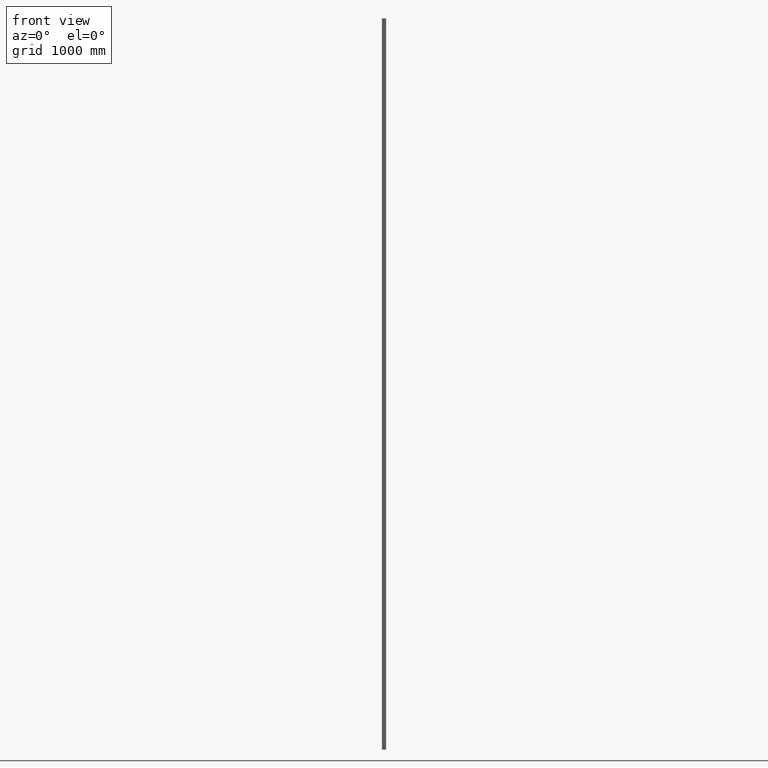
[diagram: clean part render]
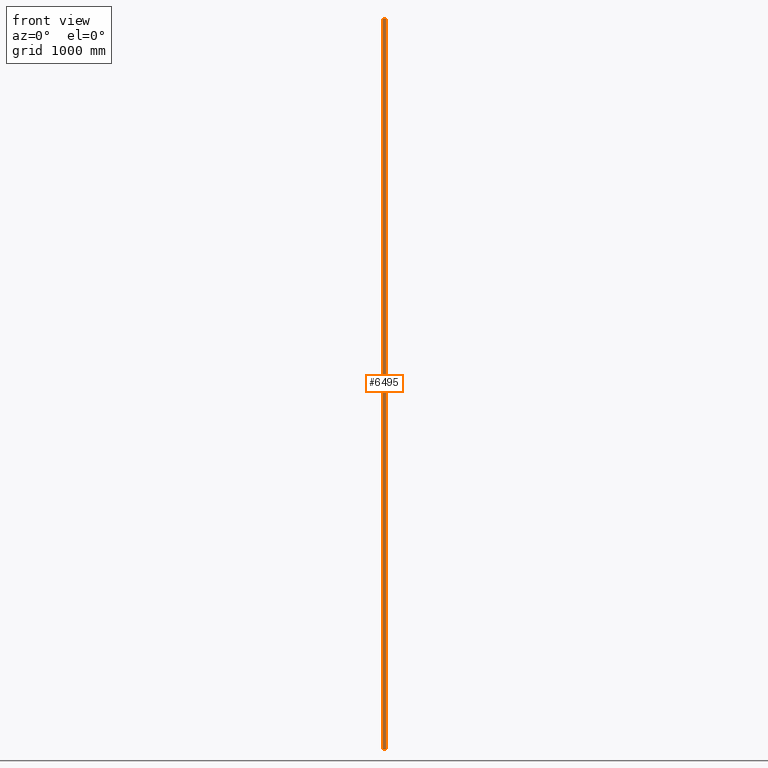
[diagram: same view with one face highlighted and labeled with its STEP entity id]
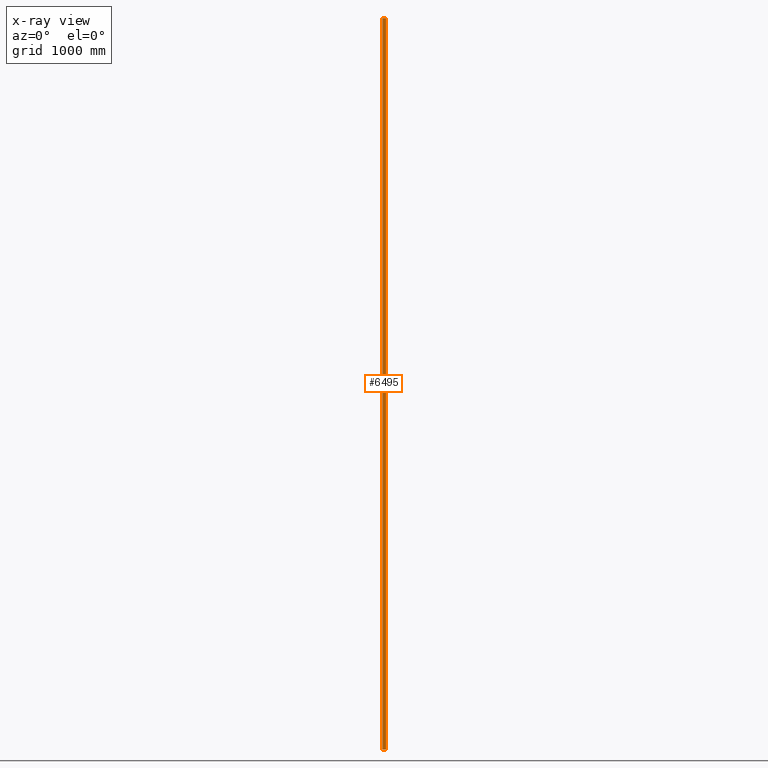
[diagram: x-ray of the same camera — body ghosted, the highlighted face saturated]
A machine part, front view. The second image highlights one B-rep face of the part: STEP entity #6495.
The next image is the same camera in x-ray: the body ghosted, the highlighted face saturated — about 0% of this face is hidden behind the body in this view.
In plain terms, the highlighted planar face has unit normal (0, 1, 0).
Its self-contained STEP definition (entity closure, byte-faithful):
#195 = CARTESIAN_POINT ( 'NONE',  ( 0.0000000000000000000, 0.0000000000000000000, 3000.000000000000000 ) ) ;
#217 = AXIS2_PLACEMENT_3D ( 'NONE', #195, #11460, #9357 ) ;
#582 = LINE ( 'NONE', #8680, #3926 ) ;
#953 = VECTOR ( 'NONE', #11928, 1000.000000000000000 ) ;
#2139 = EDGE_LOOP ( 'NONE', ( #11809, #5162, #12632, #12484 ) ) ;
#2314 = EDGE_CURVE ( 'NONE', #6839, #12365, #5081, .T. ) ;
#3674 = CARTESIAN_POINT ( 'NONE',  ( -14.37500000000002700, 0.0000000000000000000, -3000.000000000000000 ) ) ;
#3803 = CARTESIAN_POINT ( 'NONE',  ( 0.0000000000000000000, 0.0000000000000000000, 3000.000000000000000 ) ) ;
#3926 = VECTOR ( 'NONE', #9721, 1000.000000000000000 ) ;
#4560 = CARTESIAN_POINT ( 'NONE',  ( -0.0000000000000000000, 0.0000000000000000000, -3000.000000000000000 ) ) ;
#4949 = EDGE_CURVE ( 'NONE', #6839, #8238, #582, .T. ) ;
#4997 = VECTOR ( 'NONE', #10692, 1000.000000000000000 ) ;
#5081 = LINE ( 'NONE', #3803, #953 ) ;
#5162 = ORIENTED_EDGE ( 'NONE', *, *, #8343, .F. ) ;
#5505 = LINE ( 'NONE', #4560, #4997 ) ;
#5816 = LINE ( 'NONE', #10826, #6269 ) ;
#6028 = CARTESIAN_POINT ( 'NONE',  ( 14.37499999999996600, 0.0000000000000000000, -3000.000000000000000 ) ) ;
#6269 = VECTOR ( 'NONE', #11853, 1000.000000000000000 ) ;
#6495 = ADVANCED_FACE ( 'NONE', ( #6645 ), #12494, .F. ) ;
#6645 = FACE_OUTER_BOUND ( 'NONE', #2139, .T. ) ;
#6839 = VERTEX_POINT ( 'NONE', #11616 ) ;
#7656 = VERTEX_POINT ( 'NONE', #6028 ) ;
#8238 = VERTEX_POINT ( 'NONE', #3674 ) ;
#8343 = EDGE_CURVE ( 'NONE', #12365, #7656, #5816, .T. ) ;
#8680 = CARTESIAN_POINT ( 'NONE',  ( -14.37500000000002700, 0.0000000000000000000, 3000.000000000000000 ) ) ;
#9357 = DIRECTION ( 'NONE',  ( 0.0000000000000000000, -0.0000000000000000000, 1.000000000000000000 ) ) ;
#9721 = DIRECTION ( 'NONE',  ( -0.0000000000000000000, -0.0000000000000000000, -1.000000000000000000 ) ) ;
#10692 = DIRECTION ( 'NONE',  ( 1.000000000000000000, 0.0000000000000000000, 0.0000000000000000000 ) ) ;
#10715 = EDGE_CURVE ( 'NONE', #8238, #7656, #5505, .T. ) ;
#10826 = CARTESIAN_POINT ( 'NONE',  ( 14.37499999999996600, 0.0000000000000000000, 3000.000000000000000 ) ) ;
#11460 = DIRECTION ( 'NONE',  ( 0.0000000000000000000, 1.000000000000000000, 0.0000000000000000000 ) ) ;
#11616 = CARTESIAN_POINT ( 'NONE',  ( -14.37500000000002700, 0.0000000000000000000, 3000.000000000000000 ) ) ;
#11809 = ORIENTED_EDGE ( 'NONE', *, *, #10715, .T. ) ;
#11853 = DIRECTION ( 'NONE',  ( -0.0000000000000000000, -0.0000000000000000000, -1.000000000000000000 ) ) ;
#11928 = DIRECTION ( 'NONE',  ( 1.000000000000000000, 0.0000000000000000000, 0.0000000000000000000 ) ) ;
#12365 = VERTEX_POINT ( 'NONE', #13001 ) ;
#12484 = ORIENTED_EDGE ( 'NONE', *, *, #4949, .T. ) ;
#12494 = PLANE ( 'NONE',  #217 ) ;
#12632 = ORIENTED_EDGE ( 'NONE', *, *, #2314, .F. ) ;
#13001 = CARTESIAN_POINT ( 'NONE',  ( 14.37499999999996600, 0.0000000000000000000, 3000.000000000000000 ) ) ;